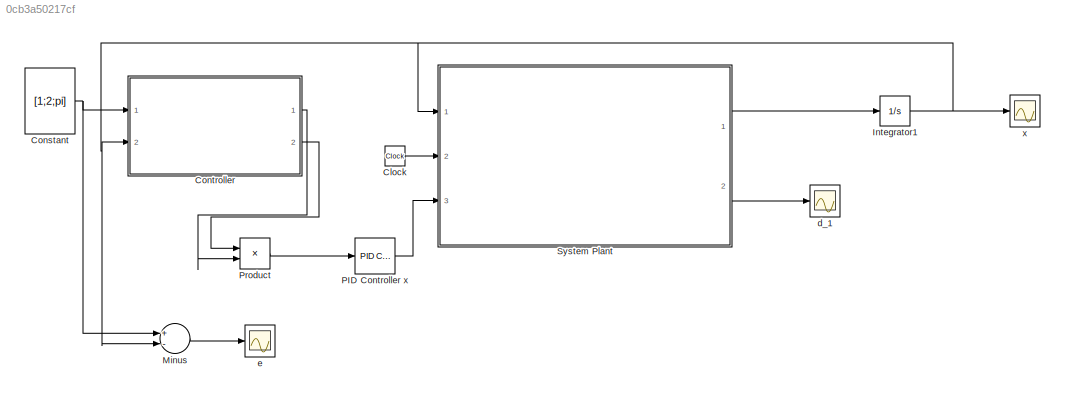
MODEL slx_0cb3a50217cf
KIND model
CONFIG AbsTol = auto
CONFIG EnableMultiTasking = off
CONFIG FixedStep = auto
CONFIG MaxStep = auto
CONFIG MinStep = auto
CONFIG RelTol = 1e-3
CONFIG SampleTimeConstraint = Unconstrained
CONFIG Solver = VariableStepAuto
CONFIG SolverName = VariableStepAuto
CONFIG StartTime = 0.0
CONFIG StopTime = 10.0
BLOCK [Clock] Clock
BLOCK [Constant] Constant
  Value = [1;2;pi]
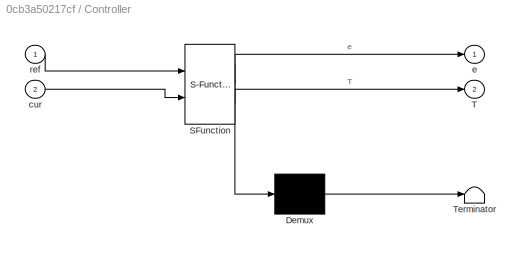
BLOCK [SubSystem] Controller
  ErrorFcn = Stateflow.Translate.translate
  PermitHierarchicalResolution = ExplicitOnly
  Ports = [2, 2]
  RequestExecContextInheritance = off
  SFBlockType = MATLAB Function
  TreatAsAtomicUnit = on
BLOCK [Demux] Controller/ Demux 
  Outputs = 1
  Ports = [1, 1]
BLOCK [S-Function] Controller/ SFunction 
  EnableBusSupport = on
  FunctionName = sf_sfun
  PortCounts = [2 3]
  Ports = [2, 3]
  SFcnIsStateOwnerBlock = off
  SFunctionDeploymentMode = off
  Tag = Stateflow S-Function 2
BLOCK [Terminator] Controller/ Terminator 
BLOCK [Outport] Controller/T
  IconDisplay = Port number
  Port = 2
BLOCK [Inport] Controller/cur
  IconDisplay = Port number
  Port = 2
BLOCK [Outport] Controller/e
  IconDisplay = Port number
BLOCK [Inport] Controller/ref
  IconDisplay = Port number
BLOCK [Integrator] Integrator1
  ContinuousStateAttributes = 'position'
  InitialCondition = [0;0;1/6*pi]
  Ports = [1, 1]
  Tag = Position_x1
BLOCK [Sum] Minus
  InputSameDT = off
  Inputs = +-
  OutDataTypeStr = Inherit: Inherit via internal rule
  Ports = [2, 1]
  SaturateOnIntegerOverflow = off
BLOCK [Reference] PID Controller x  REF=simulink/Continuous/PID Controller
  Ports = [1, 1]
  SourceBlock = simulink/Continuous/PID Controller
  SourceProductBaseCode = SL
  SourceProductName = Simulink
  SourceType = PID 1dof
BLOCK [Product] Product
  InputSameDT = off
  Multiplication = Matrix(*)
  OutDataTypeStr = Inherit: Inherit via internal rule
  Ports = [2, 1]
  RndMeth = Floor
  SaturateOnIntegerOverflow = off
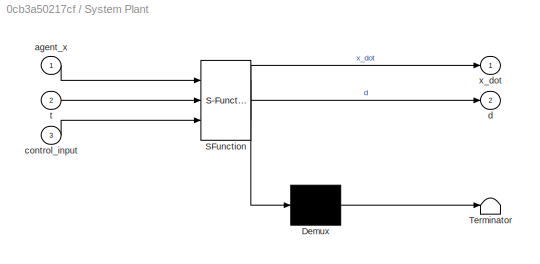
BLOCK [SubSystem] System Plant
  ErrorFcn = Stateflow.Translate.translate
  PermitHierarchicalResolution = ExplicitOnly
  Ports = [3, 2]
  RequestExecContextInheritance = off
  SFBlockType = MATLAB Function
  TreatAsAtomicUnit = on
BLOCK [Demux] System Plant/ Demux 
  Outputs = 1
  Ports = [1, 1]
BLOCK [S-Function] System Plant/ SFunction 
  EnableBusSupport = on
  FunctionName = sf_sfun
  PortCounts = [3 3]
  Ports = [3, 3]
  SFcnIsStateOwnerBlock = off
  SFunctionDeploymentMode = off
  Tag = Stateflow S-Function 16
BLOCK [Terminator] System Plant/ Terminator 
BLOCK [Inport] System Plant/agent_x
  IconDisplay = Port number
BLOCK [Inport] System Plant/control_input
  IconDisplay = Port number
  Port = 3
BLOCK [Outport] System Plant/d
  IconDisplay = Port number
  Port = 2
  VectorParamsAs1DForOutWhenUnconnected = off
BLOCK [Inport] System Plant/t
  IconDisplay = Port number
  Port = 2
BLOCK [Outport] System Plant/x_dot
  IconDisplay = Port number
  VectorParamsAs1DForOutWhenUnconnected = off
BLOCK [Scope] d_1
  Floating = off
  NumInputPorts = 1
  Ports = [1]
  ScopeSpecificationString = Simulink.scopes.TimeScopeBlockCfg('CurrentConfiguration', extmgr.ConfigurationSet(extmgr.Configuration('Core','General UI',true),extmgr.Configuration('Core','Source UI',true),extmgr.Configuration('Sources','WiredSimulink',true,'DataLoggingSaveFormat','Array'),extmgr.Configuration('Visuals','Time Domain',true,'SerializedDisplays',{struct('MinYLimReal','-0.175','MaxYLimReal','0.575','YLabelReal','',...<+1467ch>
BLOCK [Scope] e
  Floating = off
  NumInputPorts = 1
  Ports = [1]
  ScopeSpecificationString = Simulink.scopes.TimeScopeBlockCfg('CurrentConfiguration', extmgr.ConfigurationSet(extmgr.Configuration('Core','General UI',true),extmgr.Configuration('Core','Source UI',true),extmgr.Configuration('Sources','WiredSimulink',true,'DataLoggingSaveFormat','Array','DataLoggingVariableName','ScopeData2'),extmgr.Configuration('Visuals','Time Domain',true,'SerializedDisplays',{struct('MinYLimReal','-0.3315...<+1464ch>
BLOCK [Scope] x
  Floating = off
  NumInputPorts = 1
  Ports = [1]
  ScopeSpecificationString = Simulink.scopes.TimeScopeBlockCfg('CurrentConfiguration', extmgr.ConfigurationSet(extmgr.Configuration('Core','General UI',true),extmgr.Configuration('Core','Source UI',true),extmgr.Configuration('Sources','WiredSimulink',true,'DataLoggingVariableName','ScopeData1','DataLoggingSaveFormat','Array'),extmgr.Configuration('Visuals','Time Domain',true,'SerializedDisplays',{struct('MinYLimReal','-0.25',...<+1491ch>
LINE Clock:1 -> System Plant:2
NET Constant:1 -> Controller:1, Minus:1
LINE Controller:1 -> Product:2
LINE Controller:2 -> Product:1
NET Integrator1:1 -> Controller:2, Minus:2, System Plant:1, x:1
LINE Minus:1 -> e:1
LINE PID Controller x:1 -> System Plant:3
LINE Product:1 -> PID Controller x:1
LINE System Plant:1 -> Integrator1:1
LINE System Plant:2 -> d_1:1
note: NET lines group one-source signal fan-out (src -> all destinations, sorted); 1:1 wires keep LINE
CHART Controller states=1 transitions=1
  STATE_LABEL 'eML_blk_kernel()'
  STATE_LABEL 'SCRIPT:\nfunction [e,T] = p_controller(ref, cur)\n\n\n\nRadius=[0.24;0.23;0.30;0.28;0.25];\nserial_num = 1; \n% m=Mass(serial_num);\nR=Radius(serial_num);\n\ntheta = cur(3);\n\nT = [ -sin(theta), cos(theta), R; \n    -sin(pi/3 - theta), -cos(pi/3 - theta), R;\n    sin(pi/3 + theta), -cos(pi/3 + theta), R];\n\ne = ref - cur;\n%k_p = 5;\n\n%u = k_p * T * e;\n\n\n\n\n\n\nend\n'
CHART System Plant states=1 transitions=1
  STATE_LABEL 'eML_blk_kernel()'
  STATE_LABEL 'SCRIPT:\nfunction [x_dot, d] = physical_model( agent_x, t, control_input )\n\n%% Note\n% System output\n% v_dot: the acceleration vector\n% w: the matched disturbances\n% saturation status: off\n% model is established by the driving force provided by the motor\n\n%% basic parameters set of agents\n% Mass=[4.8;4.5;5.5;5.3;5.0];\nRadius=[0.24;0.23;0.30;0.28;0.25];\n% Inertia=[0.15;0.12;0.25;0.21;0.15];\n\n\n%% assi...<+1511ch>'
